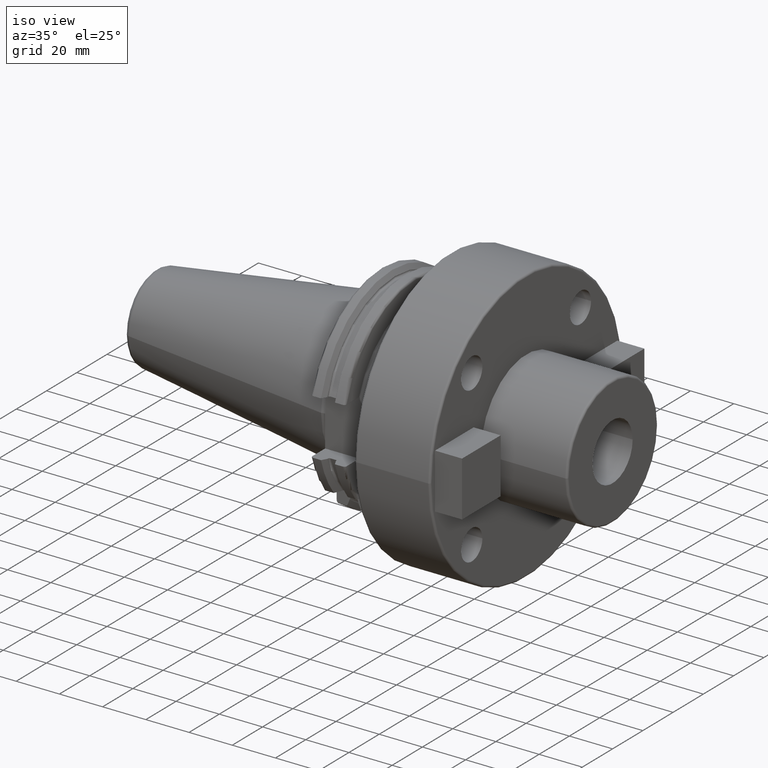
[diagram: clean part render]
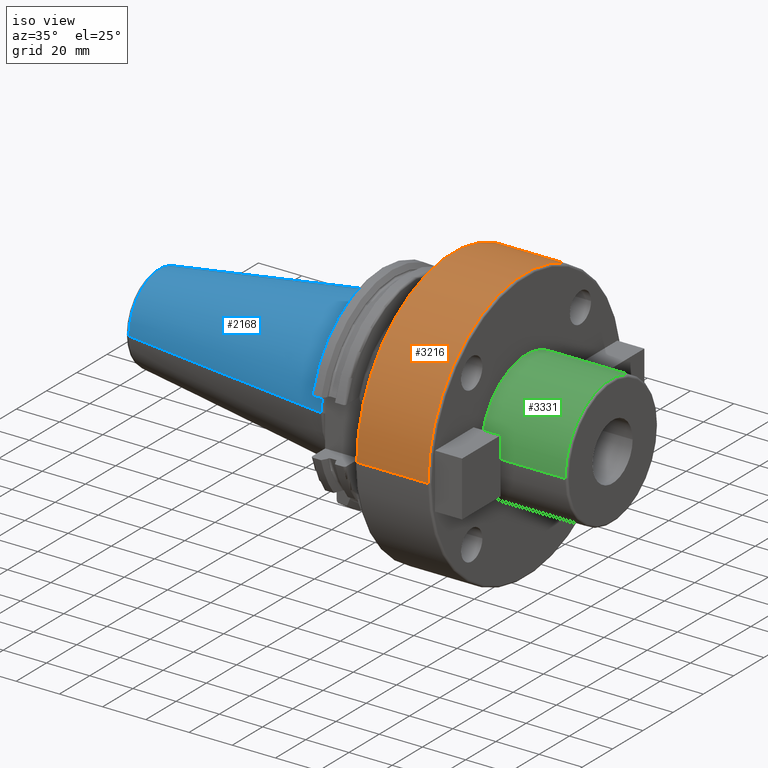
[diagram: same view with three faces highlighted in distinct colors, each labeled with its STEP entity id]
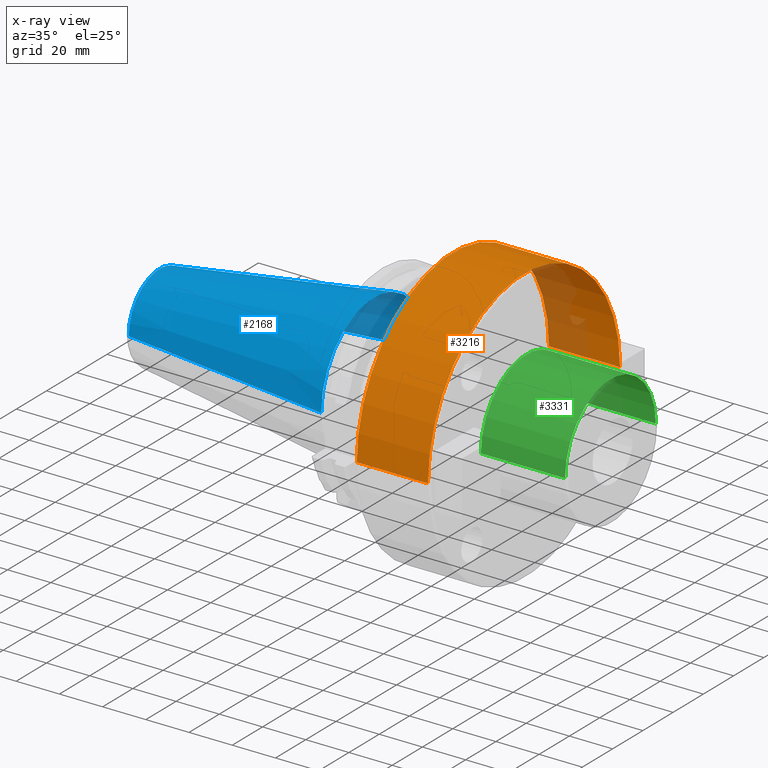
[diagram: x-ray of the same camera — body ghosted, the three highlighted faces saturated]
A machine part, iso view with three faces highlighted in distinct colors.
The next image is the same camera in x-ray (body ghosted, the three faces saturated) — at least one of them is partly hidden behind the body in this view.
Their STEP definitions:

[orange] entity #3216 — the highlighted cylindrical surface (partial cylindrical patch) has radius 63.5 mm, axis along (1, 0, 0).
#1163=DIRECTION('',(-1.E0,0.E0,0.E0));
#1164=VECTOR('',#1163,3.295E1);
#1165=CARTESIAN_POINT('',(6.9E1,-6.35E1,1.623941634254E-13));
#1166=LINE('',#1165,#1164);
#1172=DIRECTION('',(-1.E0,0.E0,0.E0));
#1173=VECTOR('',#1172,3.295E1);
#1174=CARTESIAN_POINT('',(6.9E1,6.35E1,-1.784311837379E-13));
#1175=LINE('',#1174,#1173);
#1176=CARTESIAN_POINT('',(3.605E1,0.E0,0.E0));
#1177=DIRECTION('',(1.E0,0.E0,0.E0));
#1178=DIRECTION('',(0.E0,1.E0,0.E0));
#1179=AXIS2_PLACEMENT_3D('',#1176,#1177,#1178);
#1181=CARTESIAN_POINT('',(6.9E1,0.E0,0.E0));
#1182=DIRECTION('',(-1.E0,0.E0,0.E0));
#1183=DIRECTION('',(0.E0,-1.E0,0.E0));
#1184=AXIS2_PLACEMENT_3D('',#1181,#1182,#1183);
#1948=CARTESIAN_POINT('',(6.9E1,6.35E1,0.E0));
#1949=CARTESIAN_POINT('',(6.9E1,-6.35E1,-1.555301434917E-14));
#1950=VERTEX_POINT('',#1948);
#1951=VERTEX_POINT('',#1949);
#2046=CARTESIAN_POINT('',(3.605E1,-6.35E1,-1.555301434917E-14));
#2047=CARTESIAN_POINT('',(3.605E1,6.35E1,0.E0));
#2048=VERTEX_POINT('',#2046);
#2049=VERTEX_POINT('',#2047);
#3203=CARTESIAN_POINT('',(1.45025E1,0.E0,0.E0));
#3204=DIRECTION('',(1.E0,0.E0,0.E0));
#3205=DIRECTION('',(0.E0,-1.E0,0.E0));
#3206=AXIS2_PLACEMENT_3D('',#3203,#3204,#3205);
#3207=CYLINDRICAL_SURFACE('',#3206,6.35E1);
#3209=ORIENTED_EDGE('',*,*,#3208,.F.);
#3210=ORIENTED_EDGE('',*,*,#3198,.F.);
#3212=ORIENTED_EDGE('',*,*,#3211,.F.);
#3213=ORIENTED_EDGE('',*,*,#3194,.T.);
#3214=EDGE_LOOP('',(#3209,#3210,#3212,#3213));
#3215=FACE_OUTER_BOUND('',#3214,.F.);
#3216=ADVANCED_FACE('',(#3215),#3207,.T.);
#1180=CIRCLE('',#1179,6.35E1);
#1185=CIRCLE('',#1184,6.35E1);
#3194=EDGE_CURVE('',#1951,#2048,#1166,.T.);
#3198=EDGE_CURVE('',#1950,#2049,#1175,.T.);
#3208=EDGE_CURVE('',#2049,#2048,#1180,.T.);
#3211=EDGE_CURVE('',#1951,#1950,#1185,.T.);

[blue] entity #2168 — the highlighted conical surface has half-angle 8.298 deg.
#37=CARTESIAN_POINT('',(-9.967471700563E1,0.E0,0.E0));
#38=DIRECTION('',(1.E0,0.E0,0.E0));
#39=DIRECTION('',(0.E0,1.E0,0.E0));
#40=AXIS2_PLACEMENT_3D('',#37,#38,#39);
#42=CARTESIAN_POINT('',(-4.896823332305E-1,0.E0,0.E0));
#43=DIRECTION('',(1.E0,0.E0,0.E0));
#44=DIRECTION('',(0.E0,1.E0,0.E0));
#45=AXIS2_PLACEMENT_3D('',#42,#43,#44);
#47=DIRECTION('',(-9.895312636440E-1,-1.443186691705E-1,0.E0));
#48=VECTOR('',#47,1.002343617797E2);
#49=CARTESIAN_POINT('',(-4.896823332305E-1,3.485358204157E1,0.E0));
#50=LINE('',#49,#48);
#51=DIRECTION('',(-9.895312636440E-1,1.443186691705E-1,0.E0));
#52=VECTOR('',#51,1.002343617797E2);
#53=CARTESIAN_POINT('',(-4.896823332305E-1,-3.485358204157E1,0.E0));
#54=LINE('',#53,#52);
#1741=CARTESIAN_POINT('',(-9.967471700563E1,2.038789234437E1,0.E0));
#1743=VERTEX_POINT('',#1741);
#1745=CARTESIAN_POINT('',(-9.967471700563E1,-2.038789234437E1,0.E0));
#1747=VERTEX_POINT('',#1745);
#1809=CARTESIAN_POINT('',(-4.896823332305E-1,3.485358204157E1,0.E0));
#1810=VERTEX_POINT('',#1809);
#1811=CARTESIAN_POINT('',(-4.896823332305E-1,-3.485358204157E1,0.E0));
#1812=VERTEX_POINT('',#1811);
#2154=CARTESIAN_POINT('',(-5.008219966943E1,0.E0,0.E0));
#2155=DIRECTION('',(1.E0,0.E0,0.E0));
#2156=DIRECTION('',(0.E0,-1.E0,0.E0));
#2157=AXIS2_PLACEMENT_3D('',#2154,#2155,#2156);
#2158=CONICAL_SURFACE('',#2157,2.762073719297E1,8.297826828206E0);
#2160=ORIENTED_EDGE('',*,*,#2159,.F.);
#2162=ORIENTED_EDGE('',*,*,#2161,.T.);
#2164=ORIENTED_EDGE('',*,*,#2163,.T.);
#2165=ORIENTED_EDGE('',*,*,#2147,.F.);
#2166=EDGE_LOOP('',(#2160,#2162,#2164,#2165));
#2167=FACE_OUTER_BOUND('',#2166,.F.);
#2168=ADVANCED_FACE('',(#2167),#2158,.T.);
#41=CIRCLE('',#40,2.038789234437E1);
#46=CIRCLE('',#45,3.485358204157E1);
#2147=EDGE_CURVE('',#1743,#1747,#41,.T.);
#2159=EDGE_CURVE('',#1810,#1743,#50,.T.);
#2161=EDGE_CURVE('',#1810,#1812,#46,.T.);
#2163=EDGE_CURVE('',#1812,#1747,#54,.T.);

[green] entity #3331 — the highlighted cylindrical surface (partial cylindrical patch) has radius 30 mm, axis along (1, 0, 0).
#1201=CARTESIAN_POINT('',(7.E1,0.E0,0.E0));
#1202=DIRECTION('',(1.E0,0.E0,0.E0));
#1203=DIRECTION('',(0.E0,1.E0,0.E0));
#1204=AXIS2_PLACEMENT_3D('',#1201,#1202,#1203);
#1293=CARTESIAN_POINT('',(1.09E2,0.E0,0.E0));
#1294=DIRECTION('',(-1.E0,0.E0,0.E0));
#1295=DIRECTION('',(0.E0,-1.E0,0.E0));
#1296=AXIS2_PLACEMENT_3D('',#1293,#1294,#1295);
#1313=DIRECTION('',(-1.E0,0.E0,2.248259361835E-14));
#1314=VECTOR('',#1313,3.9E1);
#1315=CARTESIAN_POINT('',(1.09E2,3.E1,-8.743718575172E-13));
#1316=LINE('',#1315,#1314);
#1317=DIRECTION('',(-1.E0,0.E0,-2.245904271836E-14));
#1318=VECTOR('',#1317,3.9E1);
#1319=CARTESIAN_POINT('',(1.09E2,-3.E1,8.734533724178E-13));
#1320=LINE('',#1319,#1318);
#1944=CARTESIAN_POINT('',(7.E1,3.E1,0.E0));
#1945=CARTESIAN_POINT('',(7.E1,-3.E1,0.E0));
#1946=VERTEX_POINT('',#1944);
#1947=VERTEX_POINT('',#1945);
#1966=CARTESIAN_POINT('',(1.09E2,3.E1,0.E0));
#1967=CARTESIAN_POINT('',(1.09E2,-3.E1,0.E0));
#1968=VERTEX_POINT('',#1966);
#1969=VERTEX_POINT('',#1967);
#3317=CARTESIAN_POINT('',(1.45025E1,0.E0,0.E0));
#3318=DIRECTION('',(1.E0,0.E0,0.E0));
#3319=DIRECTION('',(0.E0,-1.E0,0.E0));
#3320=AXIS2_PLACEMENT_3D('',#3317,#3318,#3319);
#3321=CYLINDRICAL_SURFACE('',#3320,3.E1);
#3323=ORIENTED_EDGE('',*,*,#3322,.F.);
#3325=ORIENTED_EDGE('',*,*,#3324,.T.);
#3326=ORIENTED_EDGE('',*,*,#3266,.F.);
#3328=ORIENTED_EDGE('',*,*,#3327,.F.);
#3329=EDGE_LOOP('',(#3323,#3325,#3326,#3328));
#3330=FACE_OUTER_BOUND('',#3329,.F.);
#3331=ADVANCED_FACE('',(#3330),#3321,.T.);
#1205=CIRCLE('',#1204,3.E1);
#1297=CIRCLE('',#1296,3.E1);
#3266=EDGE_CURVE('',#1946,#1947,#1205,.T.);
#3322=EDGE_CURVE('',#1969,#1968,#1297,.T.);
#3324=EDGE_CURVE('',#1969,#1947,#1320,.T.);
#3327=EDGE_CURVE('',#1968,#1946,#1316,.T.);